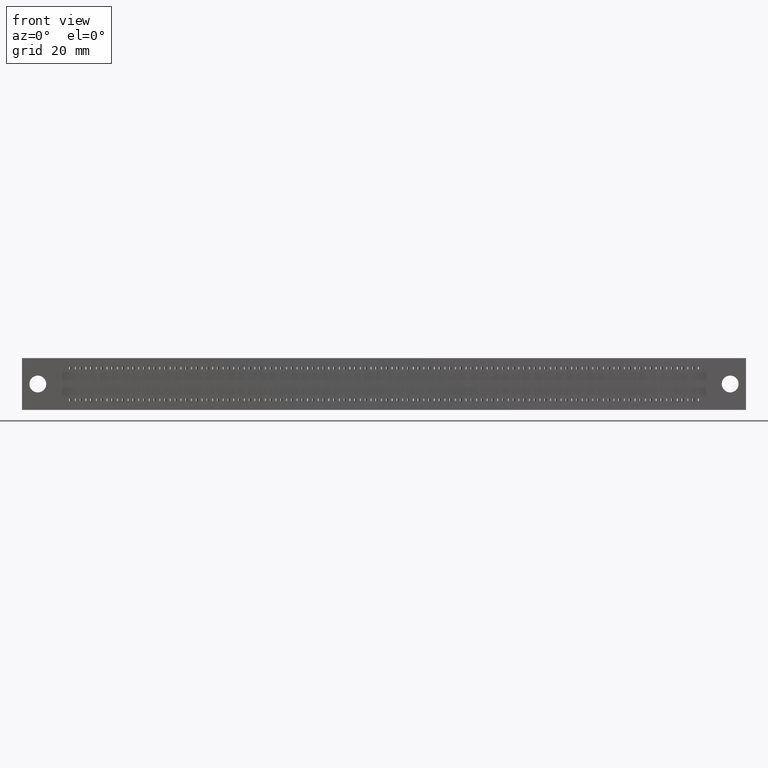
[diagram: clean part render]
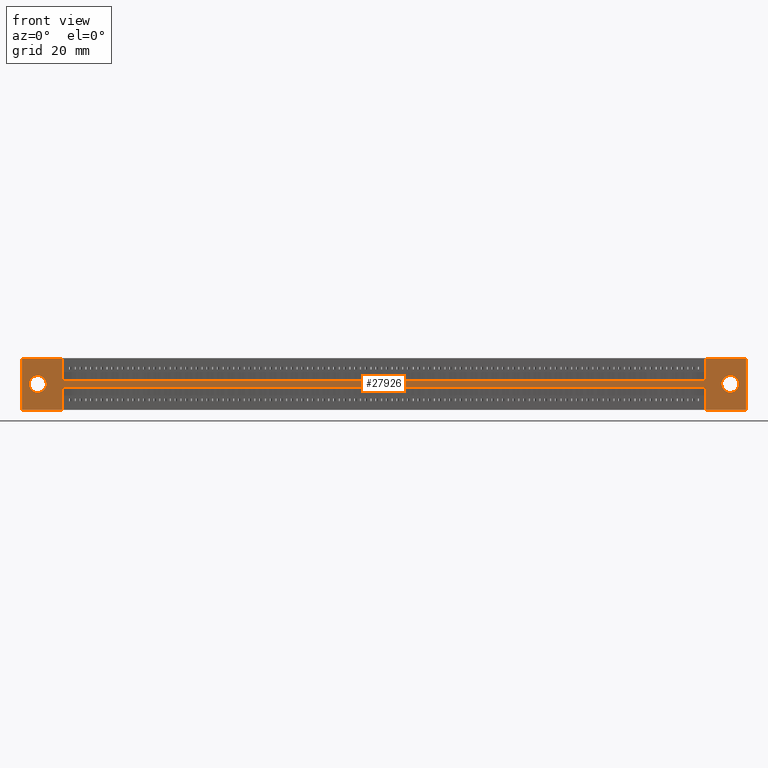
[diagram: same view with one face highlighted and labeled with its STEP entity id]
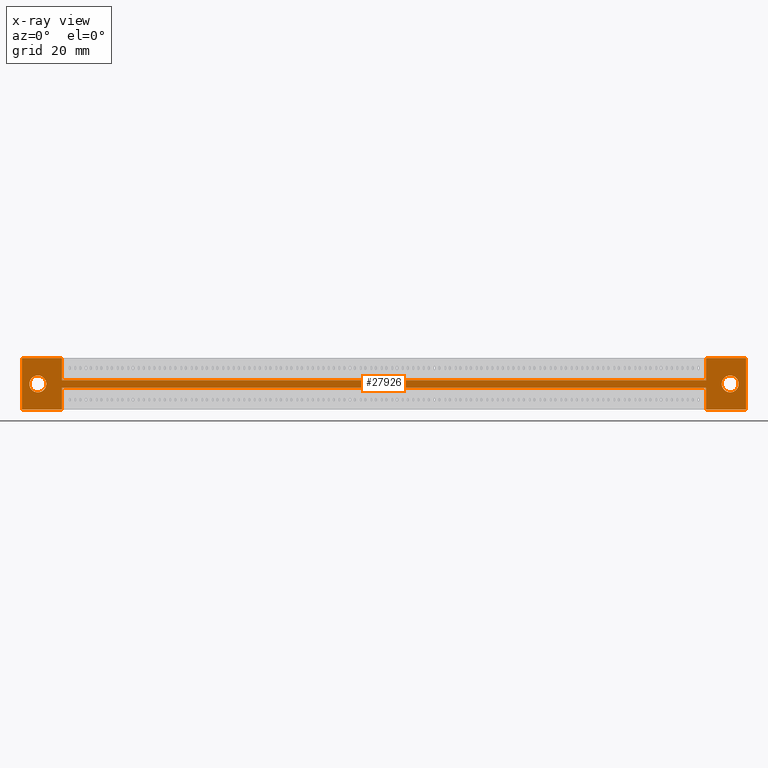
[diagram: x-ray of the same camera — body ghosted, the highlighted face saturated]
A machine part, front view. The second image highlights one B-rep face of the part: STEP entity #27926.
The next image is the same camera in x-ray: the body ghosted, the highlighted face saturated — about 0% of this face is hidden behind the body in this view.
In plain terms, the highlighted planar face has unit normal (0, -1, 0).
Its self-contained STEP definition (entity closure, byte-faithful):
#40 = EDGE_CURVE ( 'NONE', #31552, #36121, #10556, .T. ) ;
#1273 = CIRCLE ( 'NONE', #9208, 0.07999999999999996000 ) ;
#2041 = EDGE_CURVE ( 'NONE', #23517, #13974, #27932, .T. ) ;
#2088 = LINE ( 'NONE', #13080, #22239 ) ;
#2253 = DIRECTION ( 'NONE',  ( 0.0000000000000000000, -1.000000000000000000, 0.0000000000000000000 ) ) ;
#2332 = VECTOR ( 'NONE', #13188, 39.37007874015748100 ) ;
#2534 = DIRECTION ( 'NONE',  ( 0.0000000000000000000, 1.000000000000000000, 0.0000000000000000000 ) ) ;
#2549 = LINE ( 'NONE', #18707, #34514 ) ;
#2631 = VERTEX_POINT ( 'NONE', #23556 ) ;
#2777 = FACE_OUTER_BOUND ( 'NONE', #19464, .T. ) ;
#3038 = ORIENTED_EDGE ( 'NONE', *, *, #14647, .T. ) ;
#3801 = DIRECTION ( 'NONE',  ( 1.000000000000000000, 0.0000000000000000000, 0.0000000000000000000 ) ) ;
#3960 = VERTEX_POINT ( 'NONE', #24189 ) ;
#4093 = ORIENTED_EDGE ( 'NONE', *, *, #9032, .F. ) ;
#4521 = FACE_BOUND ( 'NONE', #26899, .T. ) ;
#4653 = VERTEX_POINT ( 'NONE', #19652 ) ;
#4745 = CARTESIAN_POINT ( 'NONE',  ( 0.0000000000000000000, 0.0000000000000000000, 0.0000000000000000000 ) ) ;
#5050 = CARTESIAN_POINT ( 'NONE',  ( 6.477500000000000000, 0.0000000000000000000, -0.2100000000000003500 ) ) ;
#5092 = AXIS2_PLACEMENT_3D ( 'NONE', #24766, #2253, #10656 ) ;
#5965 = VECTOR ( 'NONE', #32787, 39.37007874015748100 ) ;
#6866 = LINE ( 'NONE', #35838, #5965 ) ;
#6934 = AXIS2_PLACEMENT_3D ( 'NONE', #24674, #2534, #10819 ) ;
#7300 = ORIENTED_EDGE ( 'NONE', *, *, #31342, .F. ) ;
#7585 = CARTESIAN_POINT ( 'NONE',  ( 6.854999999999999500, 0.0000000000000000000, 0.0000000000000000000 ) ) ;
#7986 = VECTOR ( 'NONE', #24876, 39.37007874015748100 ) ;
#8092 = VECTOR ( 'NONE', #14787, 39.37007874015748100 ) ;
#8143 = ORIENTED_EDGE ( 'NONE', *, *, #14906, .F. ) ;
#8249 = DIRECTION ( 'NONE',  ( 0.0000000000000000000, 0.0000000000000000000, 1.000000000000000000 ) ) ;
#8282 = LINE ( 'NONE', #7585, #11308 ) ;
#8430 = LINE ( 'NONE', #18757, #7986 ) ;
#8445 = EDGE_CURVE ( 'NONE', #13974, #23868, #8430, .T. ) ;
#8490 = CIRCLE ( 'NONE', #17970, 0.08000000000000030700 ) ;
#9032 = EDGE_CURVE ( 'NONE', #9587, #21907, #30280, .T. ) ;
#9208 = AXIS2_PLACEMENT_3D ( 'NONE', #24987, #13227, #8249 ) ;
#9378 = ORIENTED_EDGE ( 'NONE', *, *, #8445, .F. ) ;
#9587 = VERTEX_POINT ( 'NONE', #30417 ) ;
#9646 = CARTESIAN_POINT ( 'NONE',  ( 0.0000000000000000000, 0.0000000000000000000, 0.0000000000000000000 ) ) ;
#10215 = LINE ( 'NONE', #17746, #8092 ) ;
#10482 = DIRECTION ( 'NONE',  ( 0.0000000000000000000, 0.0000000000000000000, -1.000000000000000000 ) ) ;
#10556 = CIRCLE ( 'NONE', #6934, 0.07999999999999996000 ) ;
#10656 = DIRECTION ( 'NONE',  ( 0.0000000000000000000, -0.0000000000000000000, -1.000000000000000000 ) ) ;
#10819 = DIRECTION ( 'NONE',  ( 0.0000000000000000000, 0.0000000000000000000, 1.000000000000000000 ) ) ;
#11308 = VECTOR ( 'NONE', #10482, 39.37007874015748100 ) ;
#11831 = ORIENTED_EDGE ( 'NONE', *, *, #30441, .F. ) ;
#11884 = CARTESIAN_POINT ( 'NONE',  ( 6.705499999999998900, 0.0000000000000000000, -0.3250000000000011200 ) ) ;
#11930 = VECTOR ( 'NONE', #32608, 39.37007874015748100 ) ;
#12877 = CARTESIAN_POINT ( 'NONE',  ( 6.477500000000000000, 0.0000000000000000000, -0.4900000000000007100 ) ) ;
#12995 = CARTESIAN_POINT ( 'NONE',  ( 0.3775000000000000000, 0.0000000000000000000, -0.2800000000000000300 ) ) ;
#13017 = ORIENTED_EDGE ( 'NONE', *, *, #40, .T. ) ;
#13080 = CARTESIAN_POINT ( 'NONE',  ( 0.3775000000000000000, 0.0000000000000000000, -0.2100000000000000200 ) ) ;
#13127 = EDGE_LOOP ( 'NONE', ( #3038, #21079 ) ) ;
#13188 = DIRECTION ( 'NONE',  ( -1.000000000000000000, -0.0000000000000000000, 5.598049167344802000E-017 ) ) ;
#13227 = DIRECTION ( 'NONE',  ( 0.0000000000000000000, 1.000000000000000000, 0.0000000000000000000 ) ) ;
#13413 = DIRECTION ( 'NONE',  ( 0.0000000000000000000, 1.000000000000000000, -0.0000000000000000000 ) ) ;
#13459 = CARTESIAN_POINT ( 'NONE',  ( 0.3775000000000000600, 0.0000000000000000000, 0.0000000000000000000 ) ) ;
#13940 = EDGE_CURVE ( 'NONE', #35509, #4653, #2088, .T. ) ;
#13974 = VERTEX_POINT ( 'NONE', #27268 ) ;
#14647 = EDGE_CURVE ( 'NONE', #3960, #29653, #26530, .T. ) ;
#14787 = DIRECTION ( 'NONE',  ( 1.000000000000000000, 0.0000000000000000000, -5.598049167344802000E-017 ) ) ;
#14906 = EDGE_CURVE ( 'NONE', #34416, #30826, #6866, .T. ) ;
#15179 = CARTESIAN_POINT ( 'NONE',  ( 6.854999999999999500, 0.0000000000000000000, -0.4899999999999999900 ) ) ;
#16238 = DIRECTION ( 'NONE',  ( 0.0000000000000000000, 0.0000000000000000000, -1.000000000000000000 ) ) ;
#16369 = ORIENTED_EDGE ( 'NONE', *, *, #2041, .F. ) ;
#16666 = DIRECTION ( 'NONE',  ( 0.0000000000000000000, 1.000000000000000000, -0.0000000000000000000 ) ) ;
#16976 = VECTOR ( 'NONE', #30076, 39.37007874015748100 ) ;
#17400 = EDGE_CURVE ( 'NONE', #2631, #9587, #18075, .T. ) ;
#17499 = CARTESIAN_POINT ( 'NONE',  ( 0.0000000000000000000, 0.0000000000000000000, 0.0000000000000000000 ) ) ;
#17746 = CARTESIAN_POINT ( 'NONE',  ( 0.3775000000000000000, 0.0000000000000000000, -0.2100000000000000200 ) ) ;
#17970 = AXIS2_PLACEMENT_3D ( 'NONE', #24999, #16666, #22308 ) ;
#18075 = LINE ( 'NONE', #12995, #11930 ) ;
#18353 = DIRECTION ( 'NONE',  ( -0.0000000000000000000, -0.0000000000000000000, 1.000000000000000000 ) ) ;
#18707 = CARTESIAN_POINT ( 'NONE',  ( 0.0000000000000000000, 0.0000000000000000000, -0.4899999999999999900 ) ) ;
#18757 = CARTESIAN_POINT ( 'NONE',  ( 0.0000000000000000000, 0.0000000000000000000, 0.0000000000000000000 ) ) ;
#19020 = ORIENTED_EDGE ( 'NONE', *, *, #20257, .F. ) ;
#19074 = CARTESIAN_POINT ( 'NONE',  ( 0.3775000000000000000, 0.0000000000000000000, -0.2800000000000000300 ) ) ;
#19268 = ORIENTED_EDGE ( 'NONE', *, *, #28106, .F. ) ;
#19464 = EDGE_LOOP ( 'NONE', ( #16369, #19020, #22866, #30849, #33618, #4093, #27249, #19268, #8143, #7300, #11831, #9378 ) ) ;
#19652 = CARTESIAN_POINT ( 'NONE',  ( 0.3775000000000000000, 0.0000000000000000000, -0.2100000000000000200 ) ) ;
#19833 = LINE ( 'NONE', #9646, #29931 ) ;
#20219 = ORIENTED_EDGE ( 'NONE', *, *, #23539, .T. ) ;
#20257 = EDGE_CURVE ( 'NONE', #4653, #23517, #10215, .T. ) ;
#20914 = CARTESIAN_POINT ( 'NONE',  ( 6.477500000000000000, 0.0000000000000000000, -0.2800000000000003600 ) ) ;
#21030 = EDGE_CURVE ( 'NONE', #21907, #35134, #19833, .T. ) ;
#21079 = ORIENTED_EDGE ( 'NONE', *, *, #26604, .T. ) ;
#21885 = LINE ( 'NONE', #17499, #24518 ) ;
#21907 = VERTEX_POINT ( 'NONE', #30061 ) ;
#22239 = VECTOR ( 'NONE', #32687, 39.37007874015748100 ) ;
#22308 = DIRECTION ( 'NONE',  ( 0.0000000000000000000, 0.0000000000000000000, -1.000000000000000000 ) ) ;
#22820 = VECTOR ( 'NONE', #25188, 39.37007874015748100 ) ;
#22866 = ORIENTED_EDGE ( 'NONE', *, *, #13940, .F. ) ;
#23517 = VERTEX_POINT ( 'NONE', #5050 ) ;
#23539 = EDGE_CURVE ( 'NONE', #36121, #31552, #1273, .T. ) ;
#23556 = CARTESIAN_POINT ( 'NONE',  ( 0.3775000000000000000, 0.0000000000000000000, -0.2800000000000000300 ) ) ;
#23833 = CARTESIAN_POINT ( 'NONE',  ( 0.1495000000000000500, 0.0000000000000000000, -0.1650000000000000100 ) ) ;
#23868 = VERTEX_POINT ( 'NONE', #35986 ) ;
#23905 = PLANE ( 'NONE',  #5092 ) ;
#24107 = EDGE_CURVE ( 'NONE', #35134, #35509, #21885, .T. ) ;
#24189 = CARTESIAN_POINT ( 'NONE',  ( 6.705499999999998900, 0.0000000000000000000, -0.1650000000000005100 ) ) ;
#24210 = DIRECTION ( 'NONE',  ( -1.000000000000000000, -0.0000000000000000000, -0.0000000000000000000 ) ) ;
#24518 = VECTOR ( 'NONE', #3801, 39.37007874015748100 ) ;
#24569 = CARTESIAN_POINT ( 'NONE',  ( 6.705499999999998900, 0.0000000000000000000, -0.2450000000000008000 ) ) ;
#24674 = CARTESIAN_POINT ( 'NONE',  ( 0.1495000000000000500, 0.0000000000000000000, -0.2450000000000000000 ) ) ;
#24766 = CARTESIAN_POINT ( 'NONE',  ( 0.0000000000000000000, 0.0000000000000000000, -0.4899999999999999900 ) ) ;
#24876 = DIRECTION ( 'NONE',  ( 1.000000000000000000, 0.0000000000000000000, 0.0000000000000000000 ) ) ;
#24987 = CARTESIAN_POINT ( 'NONE',  ( 0.1495000000000000500, 0.0000000000000000000, -0.2450000000000000000 ) ) ;
#24999 = CARTESIAN_POINT ( 'NONE',  ( 6.705499999999998900, 0.0000000000000000000, -0.2450000000000008000 ) ) ;
#25188 = DIRECTION ( 'NONE',  ( -1.000000000000000000, -0.0000000000000000000, -0.0000000000000000000 ) ) ;
#25934 = VERTEX_POINT ( 'NONE', #15179 ) ;
#26530 = CIRCLE ( 'NONE', #28011, 0.08000000000000030700 ) ;
#26604 = EDGE_CURVE ( 'NONE', #29653, #3960, #8490, .T. ) ;
#26899 = EDGE_LOOP ( 'NONE', ( #20219, #13017 ) ) ;
#27110 = CARTESIAN_POINT ( 'NONE',  ( 6.477500000000000000, 0.0000000000000000000, -0.2100000000000003500 ) ) ;
#27249 = ORIENTED_EDGE ( 'NONE', *, *, #17400, .F. ) ;
#27268 = CARTESIAN_POINT ( 'NONE',  ( 6.477500000000000000, 0.0000000000000000000, 0.0000000000000000000 ) ) ;
#27701 = CARTESIAN_POINT ( 'NONE',  ( 0.1495000000000000800, 0.0000000000000000000, -0.3249999999999999600 ) ) ;
#27704 = LINE ( 'NONE', #19074, #2332 ) ;
#27926 = ADVANCED_FACE ( 'NONE', ( #33446, #4521, #2777 ), #23905, .T. ) ;
#27932 = LINE ( 'NONE', #27110, #16976 ) ;
#28011 = AXIS2_PLACEMENT_3D ( 'NONE', #24569, #13413, #16238 ) ;
#28106 = EDGE_CURVE ( 'NONE', #30826, #2631, #27704, .T. ) ;
#29653 = VERTEX_POINT ( 'NONE', #11884 ) ;
#29931 = VECTOR ( 'NONE', #18353, 39.37007874015748100 ) ;
#30061 = CARTESIAN_POINT ( 'NONE',  ( 0.0000000000000000000, 0.0000000000000000000, -0.4899999999999999900 ) ) ;
#30076 = DIRECTION ( 'NONE',  ( 0.0000000000000000000, 0.0000000000000000000, 1.000000000000000000 ) ) ;
#30280 = LINE ( 'NONE', #30819, #22820 ) ;
#30417 = CARTESIAN_POINT ( 'NONE',  ( 0.3775000000000000600, 0.0000000000000000000, -0.4900000000000000500 ) ) ;
#30441 = EDGE_CURVE ( 'NONE', #23868, #25934, #8282, .T. ) ;
#30819 = CARTESIAN_POINT ( 'NONE',  ( 0.0000000000000000000, 0.0000000000000000000, -0.4899999999999999900 ) ) ;
#30826 = VERTEX_POINT ( 'NONE', #20914 ) ;
#30849 = ORIENTED_EDGE ( 'NONE', *, *, #24107, .F. ) ;
#31342 = EDGE_CURVE ( 'NONE', #25934, #34416, #2549, .T. ) ;
#31552 = VERTEX_POINT ( 'NONE', #27701 ) ;
#32608 = DIRECTION ( 'NONE',  ( 3.252199992457456200E-016, 0.0000000000000000000, -1.000000000000000000 ) ) ;
#32687 = DIRECTION ( 'NONE',  ( -3.252199992457456200E-016, -0.0000000000000000000, -1.000000000000000000 ) ) ;
#32787 = DIRECTION ( 'NONE',  ( -0.0000000000000000000, -0.0000000000000000000, 1.000000000000000000 ) ) ;
#33446 = FACE_BOUND ( 'NONE', #13127, .T. ) ;
#33618 = ORIENTED_EDGE ( 'NONE', *, *, #21030, .F. ) ;
#34416 = VERTEX_POINT ( 'NONE', #12877 ) ;
#34514 = VECTOR ( 'NONE', #24210, 39.37007874015748100 ) ;
#35134 = VERTEX_POINT ( 'NONE', #4745 ) ;
#35509 = VERTEX_POINT ( 'NONE', #13459 ) ;
#35838 = CARTESIAN_POINT ( 'NONE',  ( 6.477500000000000000, 0.0000000000000000000, -0.2800000000000003600 ) ) ;
#35986 = CARTESIAN_POINT ( 'NONE',  ( 6.854999999999999500, 0.0000000000000000000, 0.0000000000000000000 ) ) ;
#36121 = VERTEX_POINT ( 'NONE', #23833 ) ;